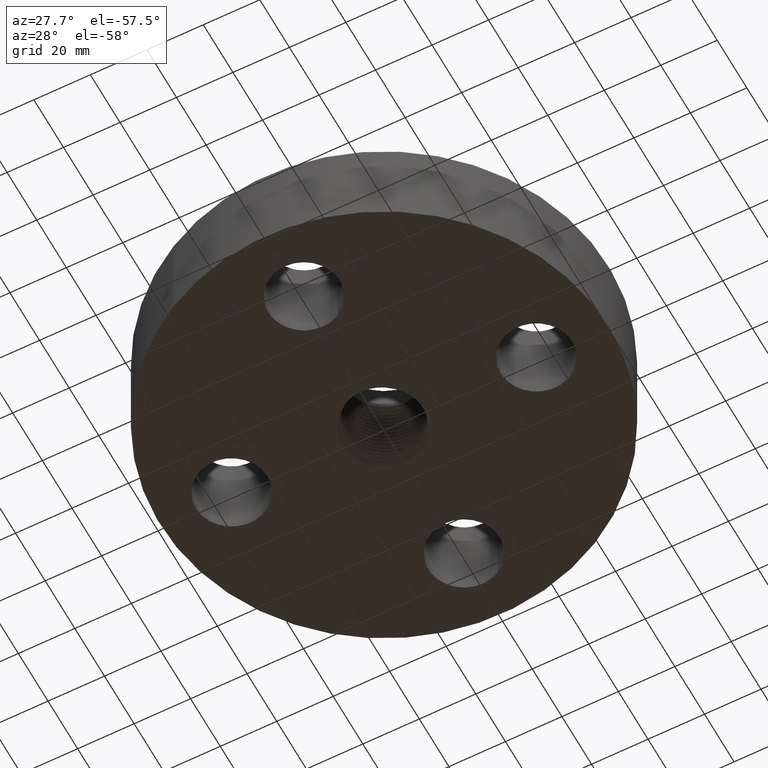
[diagram: clean part render]
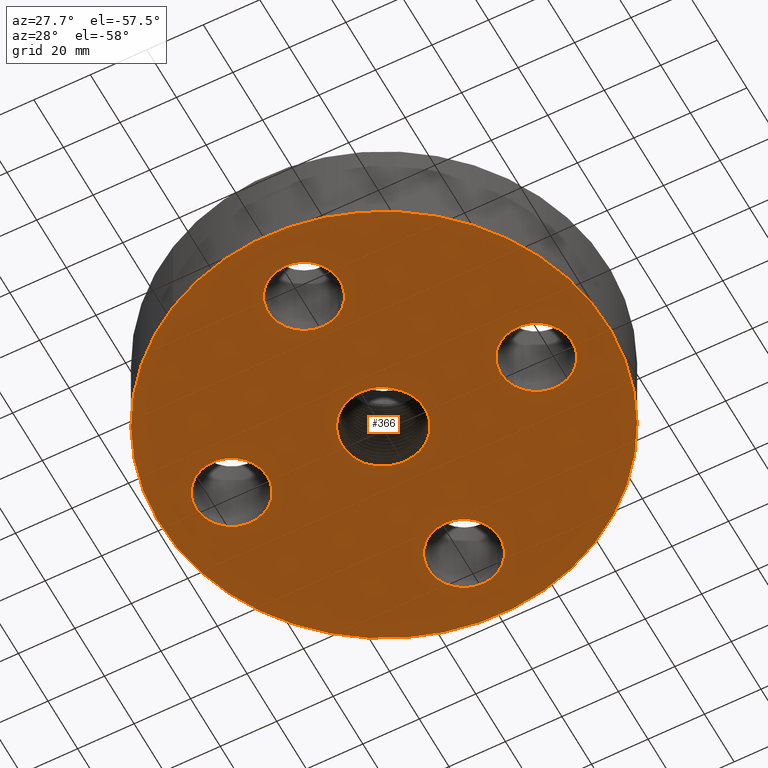
[diagram: same view with one face highlighted and labeled with its STEP entity id]
A machine part, auxiliary view. The second image highlights one B-rep face of the part: STEP entity #366.
In plain terms, the highlighted planar face has unit normal (0, 0, -1).
Its self-contained STEP definition (entity closure, byte-faithful):
#168=AXIS2_PLACEMENT_3D('Plane Axis2P3D',#165,#166,#167) ;
#172=AXIS2_PLACEMENT_3D('Circle Axis2P3D',#170,#171,$) ;
#181=AXIS2_PLACEMENT_3D('Circle Axis2P3D',#179,#180,$) ;
#282=AXIS2_PLACEMENT_3D('Circle Axis2P3D',#280,#281,$) ;
#296=AXIS2_PLACEMENT_3D('Circle Axis2P3D',#294,#295,$) ;
#305=AXIS2_PLACEMENT_3D('Circle Axis2P3D',#303,#304,$) ;
#314=AXIS2_PLACEMENT_3D('Circle Axis2P3D',#312,#313,$) ;
#323=AXIS2_PLACEMENT_3D('Circle Axis2P3D',#321,#322,$) ;
#332=AXIS2_PLACEMENT_3D('Circle Axis2P3D',#330,#331,$) ;
#341=AXIS2_PLACEMENT_3D('Circle Axis2P3D',#339,#340,$) ;
#350=AXIS2_PLACEMENT_3D('Circle Axis2P3D',#348,#349,$) ;
#359=AXIS2_PLACEMENT_3D('Circle Axis2P3D',#357,#358,$) ;
#165=CARTESIAN_POINT('Axis2P3D Location',(0.,0.,0.)) ;
#170=CARTESIAN_POINT('Axis2P3D Location',(0.,0.,0.)) ;
#174=CARTESIAN_POINT('Vertex',(1.49820480814,2.74244550592,2.79741234551E-016)) ;
#176=CARTESIAN_POINT('Vertex',(-1.49820480814,-2.74244550592,2.79741234551E-016)) ;
#179=CARTESIAN_POINT('Axis2P3D Location',(0.,0.,0.)) ;
#189=CARTESIAN_POINT('Control Point',(2.31408079837E-005,0.59131191574,0.)) ;
#190=CARTESIAN_POINT('Control Point',(0.049881718606,0.589519476539,0.)) ;
#191=CARTESIAN_POINT('Control Point',(0.0994610719926,0.582468495434,0.)) ;
#192=CARTESIAN_POINT('Control Point',(0.148012291031,0.570197483847,0.)) ;
#193=CARTESIAN_POINT('Control Point',(0.250958139715,0.532157623922,0.)) ;
#194=CARTESIAN_POINT('Control Point',(0.342170296587,0.471491939394,0.)) ;
#195=CARTESIAN_POINT('Control Point',(0.387298776339,0.432253520179,0.)) ;
#196=CARTESIAN_POINT('Control Point',(0.453118678883,0.35812031357,0.)) ;
#197=CARTESIAN_POINT('Control Point',(0.501323188506,0.272419540178,0.)) ;
#198=CARTESIAN_POINT('Control Point',(0.517571291504,0.236617256426,0.)) ;
#199=CARTESIAN_POINT('Control Point',(0.546951266465,0.153445959104,0.)) ;
#200=CARTESIAN_POINT('Control Point',(0.55972845431,0.0662972386632,0.)) ;
#201=CARTESIAN_POINT('Control Point',(0.561521881144,0.0174063341235,0.)) ;
#202=CARTESIAN_POINT('Control Point',(0.553777119006,-0.0895071472476,0.)) ;
#203=CARTESIAN_POINT('Control Point',(0.521056369592,-0.191325862891,0.)) ;
#204=CARTESIAN_POINT('Control Point',(0.496034359316,-0.244073103207,0.)) ;
#205=CARTESIAN_POINT('Control Point',(0.461263108594,-0.297708423511,0.)) ;
#206=CARTESIAN_POINT('Control Point',(0.419610636349,-0.345245410827,0.)) ;
#207=CARTESIAN_POINT('Control Point',(0.415727433641,-0.349559527599,0.)) ;
#208=CARTESIAN_POINT('Control Point',(0.411789135874,-0.35381896249,0.)) ;
#209=CARTESIAN_POINT('Control Point',(0.407795630221,-0.358023945109,0.)) ;
#210=CARTESIAN_POINT('Vertex',(2.31408079839E-005,0.59131191574,5.46369598733E-019)) ;
#212=CARTESIAN_POINT('Vertex',(0.40779574059,-0.358024030824,-1.71976649264E-007)) ;
#216=CARTESIAN_POINT('Control Point',(-0.288569959678,0.528248771449,0.)) ;
#217=CARTESIAN_POINT('Control Point',(-0.240270784716,0.552462946691,0.)) ;
#218=CARTESIAN_POINT('Control Point',(-0.189341643081,0.571210371849,0.)) ;
#219=CARTESIAN_POINT('Control Point',(-0.136585726056,0.584095111983,0.)) ;
#220=CARTESIAN_POINT('Control Point',(-0.0770713664274,0.591648781358,0.)) ;
#221=CARTESIAN_POINT('Control Point',(-0.0175838272109,0.591726107927,0.)) ;
#222=CARTESIAN_POINT('Control Point',(-0.0117107441637,0.591660848918,0.)) ;
#223=CARTESIAN_POINT('Control Point',(-0.00584187123932,0.591522765679,0.)) ;
#224=CARTESIAN_POINT('Control Point',(2.31408079839E-005,0.59131191574,0.)) ;
#225=CARTESIAN_POINT('Vertex',(-0.288569959678,0.528248771449,-1.09273919747E-018)) ;
#229=CARTESIAN_POINT('Control Point',(-0.495744168471,0.357825519398,0.)) ;
#230=CARTESIAN_POINT('Control Point',(-0.462467389956,0.400709448261,0.)) ;
#231=CARTESIAN_POINT('Control Point',(-0.424484139619,0.439826302217,0.)) ;
#232=CARTESIAN_POINT('Control Point',(-0.382344844649,0.474479378109,0.)) ;
#233=CARTESIAN_POINT('Control Point',(-0.336766331005,0.504086135867,0.)) ;
#234=CARTESIAN_POINT('Control Point',(-0.288569959678,0.528248771449,0.)) ;
#235=CARTESIAN_POINT('Vertex',(-0.495744168471,0.357825519398,8.74191357973E-018)) ;
#239=CARTESIAN_POINT('Control Point',(-0.495744168471,0.357825519398,0.)) ;
#240=CARTESIAN_POINT('Control Point',(-0.529447759878,0.307139181136,0.)) ;
#241=CARTESIAN_POINT('Control Point',(-0.556757473772,0.252377710987,0.)) ;
#242=CARTESIAN_POINT('Control Point',(-0.57700042825,0.194594189067,0.)) ;
#243=CARTESIAN_POINT('Control Point',(-0.600390746241,0.0854159567298,0.)) ;
#244=CARTESIAN_POINT('Control Point',(-0.598346076055,-0.0254995964177,0.)) ;
#245=CARTESIAN_POINT('Control Point',(-0.59211050923,-0.0755361804576,0.)) ;
#246=CARTESIAN_POINT('Control Point',(-0.569233907084,-0.173340307635,0.)) ;
#247=CARTESIAN_POINT('Control Point',(-0.526596005525,-0.263814179798,0.)) ;
#248=CARTESIAN_POINT('Control Point',(-0.500599992931,-0.306512302485,0.)) ;
#249=CARTESIAN_POINT('Control Point',(-0.434008950059,-0.393480472509,0.)) ;
#250=CARTESIAN_POINT('Control Point',(-0.349313664762,-0.462510019966,0.)) ;
#251=CARTESIAN_POINT('Control Point',(-0.298622095386,-0.49391981977,0.)) ;
#252=CARTESIAN_POINT('Control Point',(-0.209302832175,-0.534380184496,0.)) ;
#253=CARTESIAN_POINT('Control Point',(-0.114310918805,-0.55489390417,0.)) ;
#254=CARTESIAN_POINT('Control Point',(-0.0762314187544,-0.559785458472,0.)) ;
#255=CARTESIAN_POINT('Control Point',(-0.0379870075317,-0.561419721059,0.)) ;
#256=CARTESIAN_POINT('Control Point',(5.02711451129E-005,-0.559820710396,0.)) ;
#257=CARTESIAN_POINT('Vertex',(5.02711451128E-005,-0.559820710396,-3.82458719113E-018)) ;
#261=CARTESIAN_POINT('Control Point',(5.02711451128E-005,-0.559820710396,0.)) ;
#262=CARTESIAN_POINT('Control Point',(0.0557534564519,-0.557479060834,0.)) ;
#263=CARTESIAN_POINT('Control Point',(0.111012038144,-0.548203518002,0.)) ;
#264=CARTESIAN_POINT('Control Point',(0.164693455956,-0.532061506664,0.)) ;
#265=CARTESIAN_POINT('Control Point',(0.215615542583,-0.509437024567,0.)) ;
#266=CARTESIAN_POINT('Control Point',(0.262817105465,-0.480954469845,0.)) ;
#267=CARTESIAN_POINT('Vertex',(0.262817105465,-0.480954469845,8.74191357973E-018)) ;
#271=CARTESIAN_POINT('Control Point',(0.262817105465,-0.480954469845,0.)) ;
#272=CARTESIAN_POINT('Control Point',(0.284452588656,-0.46789910023,0.)) ;
#273=CARTESIAN_POINT('Control Point',(0.305306402031,-0.453612954209,0.)) ;
#274=CARTESIAN_POINT('Control Point',(0.325282627106,-0.438157475092,0.)) ;
#275=CARTESIAN_POINT('Control Point',(0.344293231842,-0.421605038333,0.)) ;
#276=CARTESIAN_POINT('Control Point',(0.362260065851,-0.404036952269,0.)) ;
#277=CARTESIAN_POINT('Vertex',(0.362260290499,-0.404037214029,2.90975703934E-007)) ;
#280=CARTESIAN_POINT('Axis2P3D Location',(1.39870617276E-016,5.24514814784E-017,0.)) ;
#294=CARTESIAN_POINT('Axis2P3D Location',(2.12500000001,1.39870617276E-016,0.)) ;
#298=CARTESIAN_POINT('Vertex',(2.56379128096,-0.239712769303,0.)) ;
#300=CARTESIAN_POINT('Vertex',(1.68620871906,0.239712769303,0.)) ;
#303=CARTESIAN_POINT('Axis2P3D Location',(2.12500000001,-1.39870617276E-016,0.)) ;
#312=CARTESIAN_POINT('Axis2P3D Location',(-6.99353086378E-017,-2.12500000001,0.)) ;
#316=CARTESIAN_POINT('Vertex',(0.239712769303,-1.68620871906,0.)) ;
#318=CARTESIAN_POINT('Vertex',(-0.239712769303,-2.56379128096,0.)) ;
#321=CARTESIAN_POINT('Axis2P3D Location',(2.79741234551E-016,-2.12500000001,0.)) ;
#330=CARTESIAN_POINT('Axis2P3D Location',(-2.12500000001,-1.39870617276E-016,0.)) ;
#334=CARTESIAN_POINT('Vertex',(-1.68620871906,-0.239712769303,0.)) ;
#336=CARTESIAN_POINT('Vertex',(-2.56379128096,0.239712769303,0.)) ;
#339=CARTESIAN_POINT('Axis2P3D Location',(-2.12500000001,-2.09805925913E-016,0.)) ;
#348=CARTESIAN_POINT('Axis2P3D Location',(0.,2.12500000001,0.)) ;
#352=CARTESIAN_POINT('Vertex',(-0.239712769303,1.68620871906,0.)) ;
#354=CARTESIAN_POINT('Vertex',(0.239712769303,2.56379128096,0.)) ;
#357=CARTESIAN_POINT('Axis2P3D Location',(-2.79741234551E-016,2.12500000001,0.)) ;
#166=DIRECTION('Axis2P3D Direction',(0.,0.,-0.0393700787402)) ;
#167=DIRECTION('Axis2P3D XDirection',(0.0393700787402,0.,0.)) ;
#171=DIRECTION('Axis2P3D Direction',(0.,0.,-0.0393700787402)) ;
#180=DIRECTION('Axis2P3D Direction',(0.,0.,-0.0393700787402)) ;
#281=DIRECTION('Axis2P3D Direction',(0.,0.,-0.0393700787402)) ;
#295=DIRECTION('Axis2P3D Direction',(0.,0.,-0.0393700787402)) ;
#304=DIRECTION('Axis2P3D Direction',(0.,0.,-0.0393700787402)) ;
#313=DIRECTION('Axis2P3D Direction',(0.,0.,-0.0393700787402)) ;
#322=DIRECTION('Axis2P3D Direction',(0.,0.,-0.0393700787402)) ;
#331=DIRECTION('Axis2P3D Direction',(0.,0.,-0.0393700787402)) ;
#340=DIRECTION('Axis2P3D Direction',(0.,0.,-0.0393700787402)) ;
#349=DIRECTION('Axis2P3D Direction',(0.,0.,-0.0393700787402)) ;
#358=DIRECTION('Axis2P3D Direction',(0.,0.,-0.0393700787402)) ;
#185=ORIENTED_EDGE('',*,*,#178,.T.) ;
#186=ORIENTED_EDGE('',*,*,#183,.T.) ;
#286=ORIENTED_EDGE('',*,*,#214,.F.) ;
#287=ORIENTED_EDGE('',*,*,#227,.F.) ;
#288=ORIENTED_EDGE('',*,*,#237,.F.) ;
#289=ORIENTED_EDGE('',*,*,#259,.T.) ;
#290=ORIENTED_EDGE('',*,*,#269,.T.) ;
#291=ORIENTED_EDGE('',*,*,#279,.T.) ;
#292=ORIENTED_EDGE('',*,*,#284,.F.) ;
#309=ORIENTED_EDGE('',*,*,#302,.F.) ;
#310=ORIENTED_EDGE('',*,*,#307,.F.) ;
#327=ORIENTED_EDGE('',*,*,#320,.F.) ;
#328=ORIENTED_EDGE('',*,*,#325,.F.) ;
#345=ORIENTED_EDGE('',*,*,#338,.F.) ;
#346=ORIENTED_EDGE('',*,*,#343,.F.) ;
#363=ORIENTED_EDGE('',*,*,#356,.F.) ;
#364=ORIENTED_EDGE('',*,*,#361,.F.) ;
#293=FACE_BOUND('',#285,.T.) ;
#311=FACE_BOUND('',#308,.T.) ;
#329=FACE_BOUND('',#326,.T.) ;
#347=FACE_BOUND('',#344,.T.) ;
#365=FACE_BOUND('',#362,.T.) ;
#366=ADVANCED_FACE('PartBody',(#187,#293,#311,#329,#347,#365),#169,.T.) ;
#188=B_SPLINE_CURVE_WITH_KNOTS('',5,(#189,#190,#191,#192,#193,#194,#195,#196,#197,#198,#199,#200,#201,#202,#203,#204,#205,#206,#207,#208,#209),.UNSPECIFIED.,.F.,.U.,(6,3,3,3,3,3,6),(0.,8.85566760593,19.4854088656,26.5694099956,35.4221100447,46.0512466517,47.1260305819),.UNSPECIFIED.) ;
#215=B_SPLINE_CURVE_WITH_KNOTS('',5,(#216,#217,#218,#219,#220,#221,#222,#223,#224),.UNSPECIFIED.,.F.,.U.,(6,3,6),(0.,9.50983211247,10.5515504987),.UNSPECIFIED.) ;
#228=B_SPLINE_CURVE_WITH_KNOTS('',5,(#229,#230,#231,#232,#233,#234),.UNSPECIFIED.,.F.,.U.,(6,6),(0.,9.48959063536),.UNSPECIFIED.) ;
#238=B_SPLINE_CURVE_WITH_KNOTS('',5,(#239,#240,#241,#242,#243,#244,#245,#246,#247,#248,#249,#250,#251,#252,#253,#254,#255,#256),.UNSPECIFIED.,.F.,.U.,(6,3,3,3,3,6),(0.,10.6417721198,19.5064254248,28.3694856855,39.0104010577,45.9644373394),.UNSPECIFIED.) ;
#260=B_SPLINE_CURVE_WITH_KNOTS('',5,(#261,#262,#263,#264,#265,#266),.UNSPECIFIED.,.F.,.U.,(6,6),(0.,10.1837456572),.UNSPECIFIED.) ;
#270=B_SPLINE_CURVE_WITH_KNOTS('',5,(#271,#272,#273,#274,#275,#276),.UNSPECIFIED.,.F.,.U.,(6,6),(0.,4.66785941115),.UNSPECIFIED.) ;
#173=CIRCLE('generated circle',#172,3.12500000001) ;
#182=CIRCLE('generated circle',#181,3.12500000001) ;
#283=CIRCLE('generated circle',#282,0.542658804889) ;
#297=CIRCLE('generated circle',#296,0.500000000002) ;
#306=CIRCLE('generated circle',#305,0.500000000002) ;
#315=CIRCLE('generated circle',#314,0.500000000002) ;
#324=CIRCLE('generated circle',#323,0.500000000002) ;
#333=CIRCLE('generated circle',#332,0.500000000002) ;
#342=CIRCLE('generated circle',#341,0.500000000002) ;
#351=CIRCLE('generated circle',#350,0.500000000002) ;
#360=CIRCLE('generated circle',#359,0.500000000002) ;
#178=EDGE_CURVE('',#175,#177,#173,.T.) ;
#183=EDGE_CURVE('',#177,#175,#182,.T.) ;
#214=EDGE_CURVE('',#211,#213,#188,.T.) ;
#227=EDGE_CURVE('',#226,#211,#215,.T.) ;
#237=EDGE_CURVE('',#236,#226,#228,.T.) ;
#259=EDGE_CURVE('',#236,#258,#238,.T.) ;
#269=EDGE_CURVE('',#258,#268,#260,.T.) ;
#279=EDGE_CURVE('',#268,#278,#270,.T.) ;
#284=EDGE_CURVE('',#213,#278,#283,.T.) ;
#302=EDGE_CURVE('',#299,#301,#297,.T.) ;
#307=EDGE_CURVE('',#301,#299,#306,.T.) ;
#320=EDGE_CURVE('',#317,#319,#315,.T.) ;
#325=EDGE_CURVE('',#319,#317,#324,.T.) ;
#338=EDGE_CURVE('',#335,#337,#333,.T.) ;
#343=EDGE_CURVE('',#337,#335,#342,.T.) ;
#356=EDGE_CURVE('',#353,#355,#351,.T.) ;
#361=EDGE_CURVE('',#355,#353,#360,.T.) ;
#184=EDGE_LOOP('',(#185,#186)) ;
#285=EDGE_LOOP('',(#286,#287,#288,#289,#290,#291,#292)) ;
#308=EDGE_LOOP('',(#309,#310)) ;
#326=EDGE_LOOP('',(#327,#328)) ;
#344=EDGE_LOOP('',(#345,#346)) ;
#362=EDGE_LOOP('',(#363,#364)) ;
#187=FACE_OUTER_BOUND('',#184,.T.) ;
#169=PLANE('',#168) ;
#175=VERTEX_POINT('',#174) ;
#177=VERTEX_POINT('',#176) ;
#211=VERTEX_POINT('',#210) ;
#213=VERTEX_POINT('',#212) ;
#226=VERTEX_POINT('',#225) ;
#236=VERTEX_POINT('',#235) ;
#258=VERTEX_POINT('',#257) ;
#268=VERTEX_POINT('',#267) ;
#278=VERTEX_POINT('',#277) ;
#299=VERTEX_POINT('',#298) ;
#301=VERTEX_POINT('',#300) ;
#317=VERTEX_POINT('',#316) ;
#319=VERTEX_POINT('',#318) ;
#335=VERTEX_POINT('',#334) ;
#337=VERTEX_POINT('',#336) ;
#353=VERTEX_POINT('',#352) ;
#355=VERTEX_POINT('',#354) ;